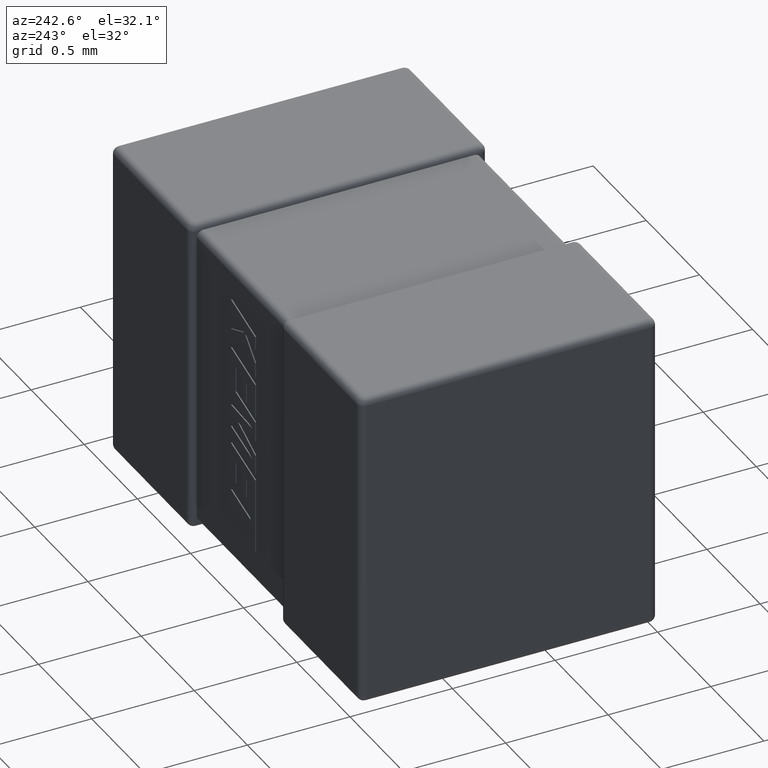
[diagram: clean part render]
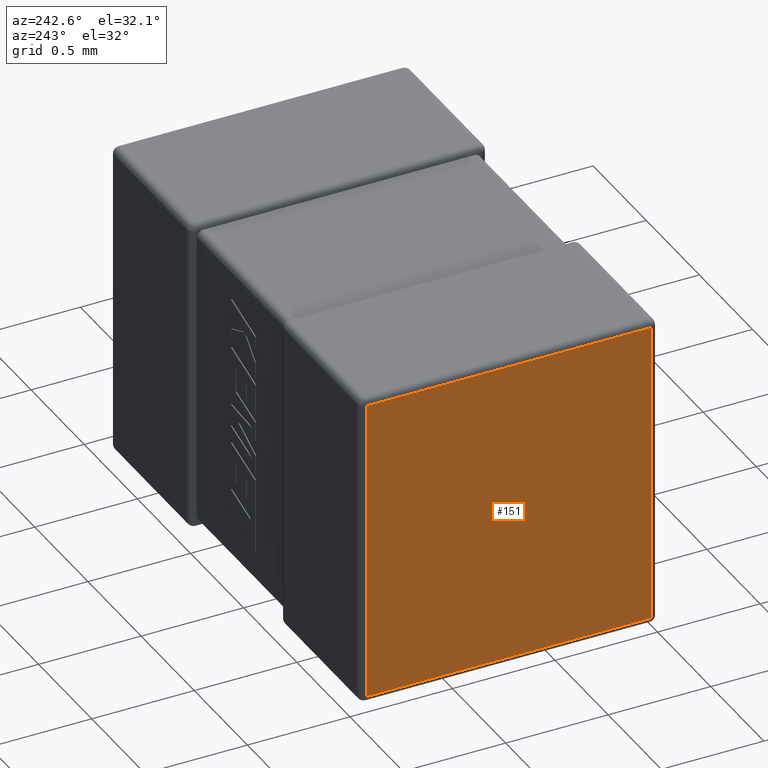
[diagram: same view with one face highlighted and labeled with its STEP entity id]
A machine part, auxiliary view. The second image highlights one B-rep face of the part: STEP entity #151.
In plain terms, the highlighted planar face has unit normal (-1, 0, 0).
Its self-contained STEP definition (entity closure, byte-faithful):
#53 = CARTESIAN_POINT ( 'NONE',  ( 0.000000000000000000, 0.03223999999999999089, -0.03223999999999999783 ) ) ;
#151 = ADVANCED_FACE ( 'NONE', ( #1695 ), #4515, .T. ) ;
#205 = VECTOR ( 'NONE', #684, 1000.000000000000000 ) ;
#255 = AXIS2_PLACEMENT_3D ( 'NONE', #2543, #2083, #702 ) ;
#281 = LINE ( 'NONE', #1655, #705 ) ;
#324 = VERTEX_POINT ( 'NONE', #3708 ) ;
#371 = EDGE_LOOP ( 'NONE', ( #2806, #3893, #2416, #3634 ) ) ;
#383 = CARTESIAN_POINT ( 'NONE',  ( 0.000000000000000000, 1.417759999999999909, -1.517759999999999998 ) ) ;
#661 = CARTESIAN_POINT ( 'NONE',  ( 0.000000000000000000, 1.449999999999999956, -0.03223999999999999783 ) ) ;
#679 = EDGE_CURVE ( 'NONE', #324, #1812, #281, .T. ) ;
#684 = DIRECTION ( 'NONE',  ( -0.000000000000000000, 1.000000000000000000, -0.000000000000000000 ) ) ;
#698 = VERTEX_POINT ( 'NONE', #3547 ) ;
#702 = DIRECTION ( 'NONE',  ( 0.000000000000000000, 0.000000000000000000, 1.000000000000000000 ) ) ;
#705 = VECTOR ( 'NONE', #4616, 1000.000000000000000 ) ;
#971 = LINE ( 'NONE', #1674, #4300 ) ;
#1512 = EDGE_CURVE ( 'NONE', #1796, #324, #2343, .T. ) ;
#1655 = CARTESIAN_POINT ( 'NONE',  ( 0.000000000000000000, 0.03223999999999999089, 0.000000000000000000 ) ) ;
#1674 = CARTESIAN_POINT ( 'NONE',  ( 0.000000000000000000, 1.417759999999999909, -1.550000000000000044 ) ) ;
#1695 = FACE_OUTER_BOUND ( 'NONE', #371, .T. ) ;
#1796 = VERTEX_POINT ( 'NONE', #383 ) ;
#1812 = VERTEX_POINT ( 'NONE', #53 ) ;
#1863 = DIRECTION ( 'NONE',  ( -0.000000000000000000, -1.000000000000000000, -0.000000000000000000 ) ) ;
#2083 = DIRECTION ( 'NONE',  ( -1.000000000000000000, 0.000000000000000000, 0.000000000000000000 ) ) ;
#2245 = CARTESIAN_POINT ( 'NONE',  ( 0.000000000000000000, 0.000000000000000000, -1.517759999999999998 ) ) ;
#2343 = LINE ( 'NONE', #2245, #2604 ) ;
#2412 = LINE ( 'NONE', #661, #205 ) ;
#2416 = ORIENTED_EDGE ( 'NONE', *, *, #2988, .T. ) ;
#2543 = CARTESIAN_POINT ( 'NONE',  ( 0.000000000000000000, 0.000000000000000000, 0.000000000000000000 ) ) ;
#2604 = VECTOR ( 'NONE', #1863, 1000.000000000000000 ) ;
#2806 = ORIENTED_EDGE ( 'NONE', *, *, #1512, .T. ) ;
#2988 = EDGE_CURVE ( 'NONE', #1812, #698, #2412, .T. ) ;
#3169 = DIRECTION ( 'NONE',  ( -0.000000000000000000, 0.000000000000000000, -1.000000000000000000 ) ) ;
#3547 = CARTESIAN_POINT ( 'NONE',  ( 0.000000000000000000, 1.417759999999999909, -0.03223999999999999783 ) ) ;
#3634 = ORIENTED_EDGE ( 'NONE', *, *, #4634, .T. ) ;
#3708 = CARTESIAN_POINT ( 'NONE',  ( 0.000000000000000000, 0.03223999999999999089, -1.517759999999999998 ) ) ;
#3893 = ORIENTED_EDGE ( 'NONE', *, *, #679, .T. ) ;
#4300 = VECTOR ( 'NONE', #3169, 1000.000000000000000 ) ;
#4515 = PLANE ( 'NONE',  #255 ) ;
#4616 = DIRECTION ( 'NONE',  ( -0.000000000000000000, -0.000000000000000000, 1.000000000000000000 ) ) ;
#4634 = EDGE_CURVE ( 'NONE', #698, #1796, #971, .T. ) ;